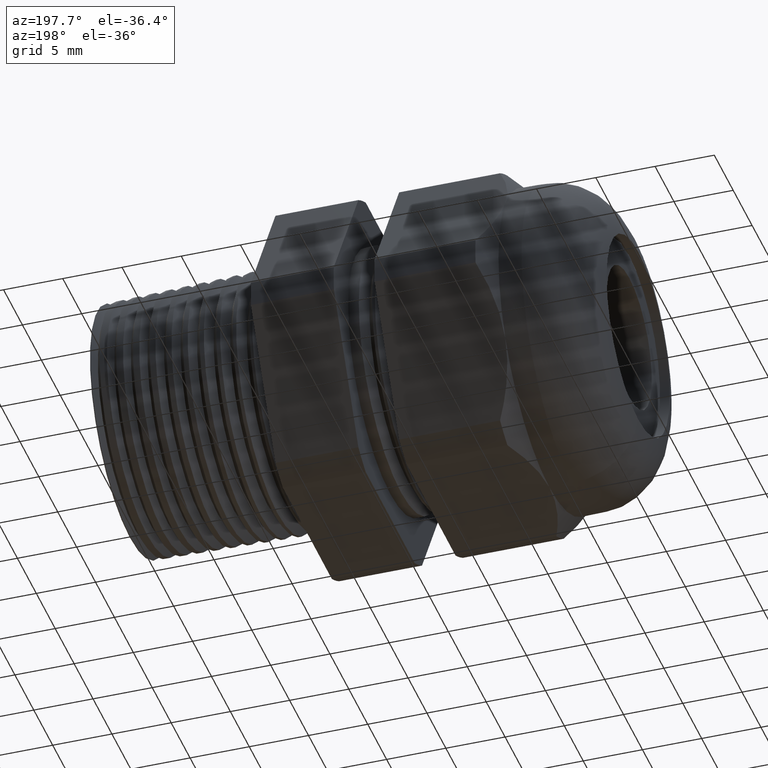
[diagram: clean part render]
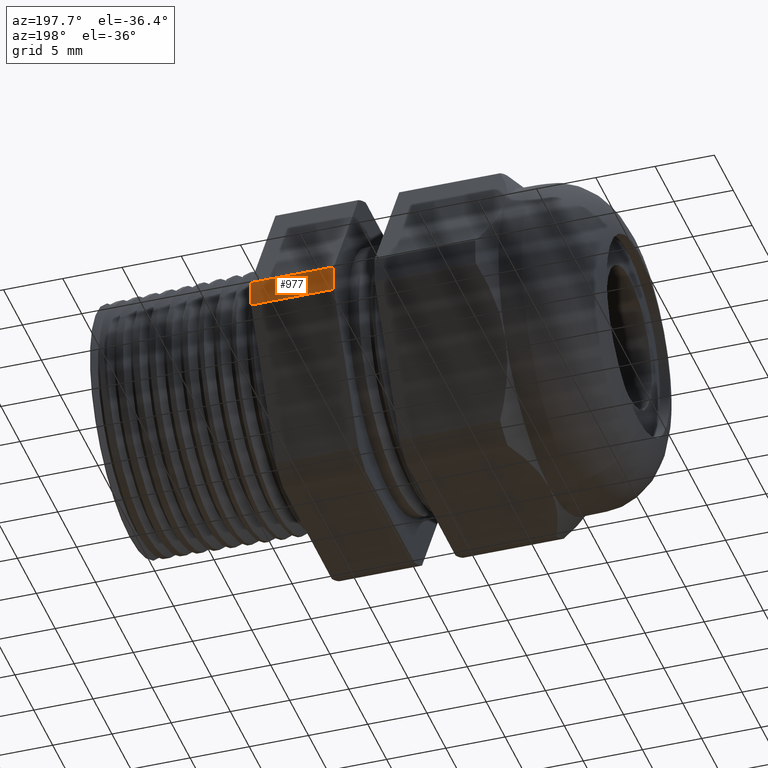
[diagram: same view with one face highlighted and labeled with its STEP entity id]
A machine part, auxiliary view. The second image highlights one B-rep face of the part: STEP entity #977.
In plain terms, the highlighted cylindrical surface (partial cylindrical patch) has radius 14.9428 mm, axis along (-1, 0, 0).
Its self-contained STEP definition (entity closure, byte-faithful):
#856 = EDGE_CURVE ( 'NONE', #1205, #857, #2872, .T. ) ;
#857 = VERTEX_POINT ( 'NONE', #2868 ) ;
#973 = EDGE_CURVE ( 'NONE', #1208, #974, #3114, .T. ) ;
#974 = VERTEX_POINT ( 'NONE', #3106 ) ;
#977 = ADVANCED_FACE ( 'NONE', ( #3101 ), #3100, .T. ) ;
#978 = EDGE_LOOP ( 'NONE', ( #979, #980, #981, #982 ) ) ;
#979 = ORIENTED_EDGE ( 'NONE', *, *, #973, .F. ) ;
#980 = ORIENTED_EDGE ( 'NONE', *, *, #1207, .F. ) ;
#981 = ORIENTED_EDGE ( 'NONE', *, *, #856, .T. ) ;
#982 = ORIENTED_EDGE ( 'NONE', *, *, #983, .F. ) ;
#983 = EDGE_CURVE ( 'NONE', #974, #857, #3094, .T. ) ;
#1205 = VERTEX_POINT ( 'NONE', #3435 ) ;
#1207 = EDGE_CURVE ( 'NONE', #1205, #1208, #3434, .T. ) ;
#1208 = VERTEX_POINT ( 'NONE', #3429 ) ;
#2868 = CARTESIAN_POINT ( 'NONE',  ( -0.5855905511811022600, 0.5866618723924790200, -0.04387183015273742700 ) ) ;
#2869 = DIRECTION ( 'NONE',  ( -1.000000000000000000, 0.0000000000000000000, 0.0000000000000000000 ) ) ;
#2870 = VECTOR ( 'NONE', #2869, 39.37007874015748100 ) ;
#2871 = CARTESIAN_POINT ( 'NONE',  ( 0.2800000000000000300, 0.5866618723924790200, -0.04387183015273742700 ) ) ;
#2872 = LINE ( 'NONE', #2871, #2870 ) ;
#3091 = DIRECTION ( 'NONE',  ( 0.0000000000000000000, 0.0000000000000000000, 1.000000000000000000 ) ) ;
#3092 = DIRECTION ( 'NONE',  ( -1.000000000000000000, 0.0000000000000000000, 0.0000000000000000000 ) ) ;
#3093 = AXIS2_PLACEMENT_3D ( 'NONE', #3099, #3092, #3091 ) ;
#3094 = CIRCLE ( 'NONE', #3093, 0.5882999999999999300 ) ;
#3095 = DIRECTION ( 'NONE',  ( 0.0000000000000000000, 0.0000000000000000000, 1.000000000000000000 ) ) ;
#3096 = DIRECTION ( 'NONE',  ( -1.000000000000000000, 0.0000000000000000000, 0.0000000000000000000 ) ) ;
#3097 = CARTESIAN_POINT ( 'NONE',  ( 0.2800000000000000300, 0.0000000000000000000, 0.0000000000000000000 ) ) ;
#3098 = AXIS2_PLACEMENT_3D ( 'NONE', #3097, #3096, #3095 ) ;
#3099 = CARTESIAN_POINT ( 'NONE',  ( -0.5855905511811022600, 0.0000000000000000000, 0.0000000000000000000 ) ) ;
#3100 = CYLINDRICAL_SURFACE ( 'NONE', #3098, 0.5882999999999999300 ) ;
#3101 = FACE_OUTER_BOUND ( 'NONE', #978, .T. ) ;
#3106 = CARTESIAN_POINT ( 'NONE',  ( -0.5855905511811022600, 0.5866618723924790200, 0.04387183015273755900 ) ) ;
#3107 = DIRECTION ( 'NONE',  ( -1.000000000000000000, 0.0000000000000000000, 0.0000000000000000000 ) ) ;
#3108 = VECTOR ( 'NONE', #3107, 39.37007874015748100 ) ;
#3109 = CARTESIAN_POINT ( 'NONE',  ( 0.2800000000000000300, 0.5866618723924790200, 0.04387183015273755900 ) ) ;
#3114 = LINE ( 'NONE', #3109, #3108 ) ;
#3429 = CARTESIAN_POINT ( 'NONE',  ( -0.3100000000000000000, 0.5866618723924790200, 0.04387183015273755900 ) ) ;
#3430 = DIRECTION ( 'NONE',  ( 0.0000000000000000000, 0.0000000000000000000, -1.000000000000000000 ) ) ;
#3431 = DIRECTION ( 'NONE',  ( 1.000000000000000000, 0.0000000000000000000, 0.0000000000000000000 ) ) ;
#3432 = CARTESIAN_POINT ( 'NONE',  ( -0.3100000000000000000, 0.0000000000000000000, 0.0000000000000000000 ) ) ;
#3433 = AXIS2_PLACEMENT_3D ( 'NONE', #3432, #3431, #3430 ) ;
#3434 = CIRCLE ( 'NONE', #3433, 0.5882999999999999300 ) ;
#3435 = CARTESIAN_POINT ( 'NONE',  ( -0.3100000000000000000, 0.5866618723924790200, -0.04387183015273743400 ) ) ;